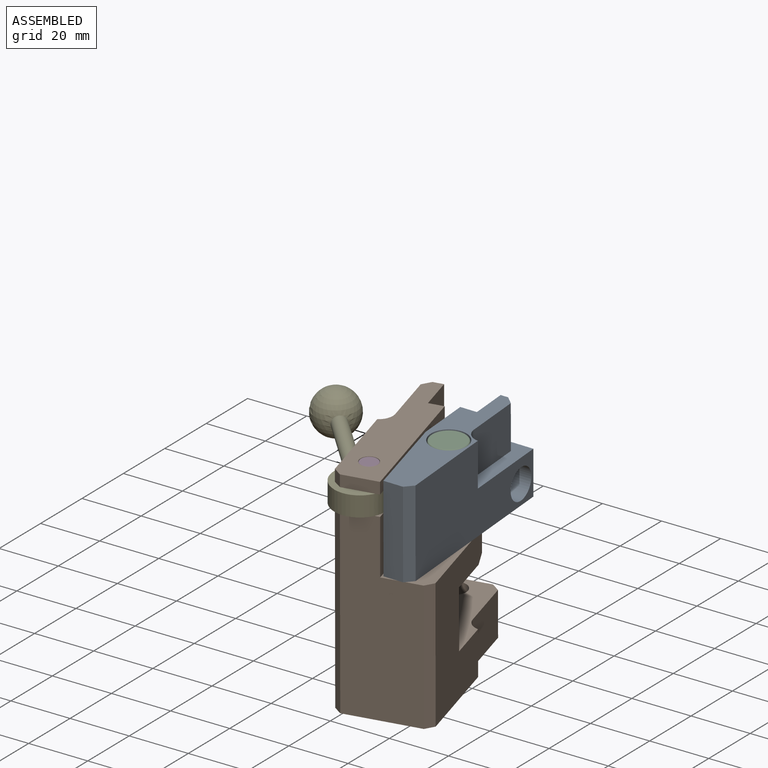
[diagram: assembled view]
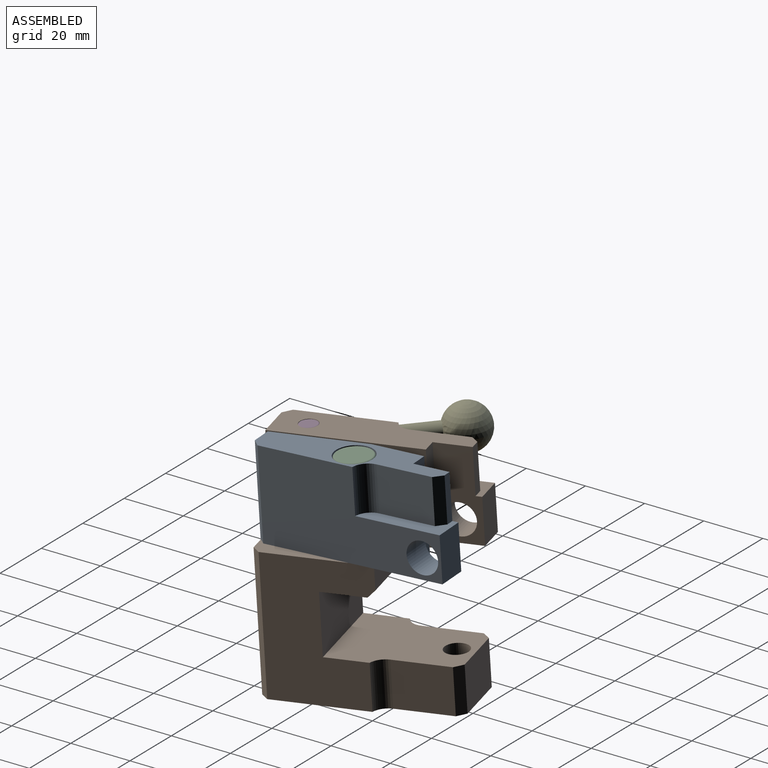
[diagram: assembled view, second angle]
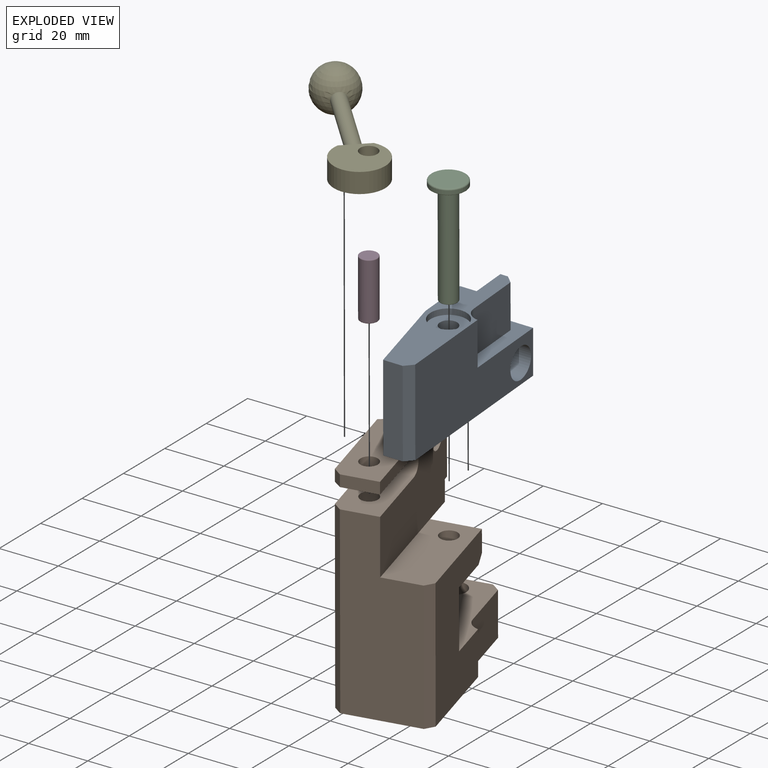
[diagram: exploded view]
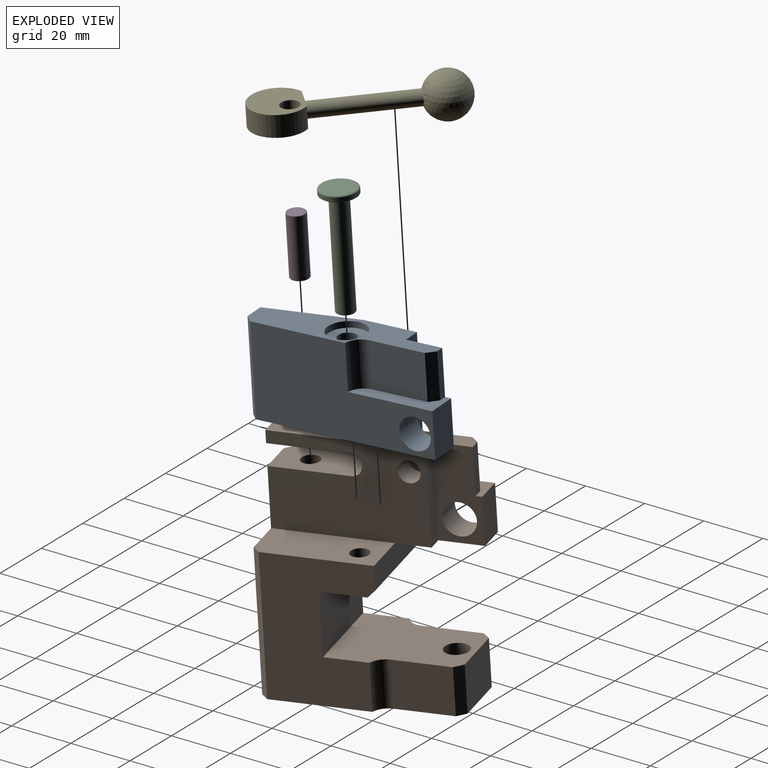
[diagram: exploded view, second angle]
ASSEMBLY  parts=5 mates=5
PART A: 19 faces, bbox 15x62x30 mm
  f0: cylinder r=3mm len=28mm, axis (0,0,1), area 527.8mm2, adj f8,f17
  f1: plane 30x6.5mm, normal (0,-1,0), area 195mm2, adj f2,f8,f12,f16
  f2: plane 30.5x30mm, normal (0.98,-0.19,0), area 932.5mm2, adj f1,f3,f8,f12
  f3: plane 30x17.5mm, normal (1,0,0), area 525mm2, adj f2,f4,f8,f12
  f4: plane 30x5.5mm, normal (0,1,0), area 165mm2, adj f3,f5,f8,f12
  f5: plane 30x14mm, normal (1,0,0), area 303.4mm2, adj f4,f6,f8,f9,f11,f12,f15
  f6: plane 15x9.5mm, normal (0,1,0), area 142.5mm2, adj f5,f7,f8,f9
  f7: plane 59.5x30mm, normal (-1,0,0), area 1278.4mm2, adj f6,f8,f9,f12,f13,f15,f16
  f8: plane 62x15mm, normal (0,0,1), area 730.1mm2, adj f0,f1,f2,f3,f4,f5,f6,f7
  f9: plane 28x9.5mm, normal (0,0,-1), area 133.8mm2, adj f5,f6,f7,f10,f11,f13,f14
  f10: plane 18.53x15mm, normal (-1,0,0), area 277.9mm2, adj f9,f12,f13,f14
  f11: plane 15x2.5mm, normal (0,1,0), area 37.5mm2, adj f5,f9,f12,f14
  f12: plane 60x15mm, normal (0,0,-1), area 501.9mm2, adj f1,f2,f3,f4,f5,f7,f10,f11
  f13: cylinder r=5mm len=15mm, axis (0,0,1), area 110.2mm2, adj f7,f9,f10,f12
  f14: plane 15x2.5mm, normal (-0.71,0.71,0), area 53mm2, adj f9,f10,f11,f12
  f15: cylinder r=5.25mm len=10.5mm, axis (-1,0,0), area 313.4mm2, adj f5,f7
  f16: plane 30x2.5mm, normal (-0.71,-0.71,0), area 106.1mm2, adj f1,f7,f8,f12
  f17: plane 12.5x12.5mm, normal (0,0,-1), area 94.4mm2, adj f0,f18
  f18: cylinder r=6.25mm len=12.5mm, axis (0,0,-1), area 78.5mm2, adj f12,f17
PART B: 43 faces, bbox 30x62x75 mm
  f0: plane 37x15.5mm, normal (0,0,1), area 541.6mm2, adj f3,f5,f10,f18,f32,f39
  f1: plane 12x4mm, normal (0,-1,0), area 48mm2, adj f3,f20,f23,f33
  f2: plane 75x59.5mm, normal (-1,0,0), area 2266mm2, adj f4,f11,f12,f14,f17,f18,f19,f20
  f3: plane 48x30mm, normal (1,0,0), area 1207.3mm2, adj f0,f1,f10,f20,f21,f22,f23,f24
  f4: plane 30x20mm, normal (0,1,0), area 600mm2, adj f2,f5,f11,f17
  f5: plane 45x34.5mm, normal (1,0,0), area 1164.4mm2, adj f0,f4,f11,f12,f13,f17,f18,f19
  f6: plane 18.73x15mm, normal (1,0,0), area 281mm2, adj f11,f12,f13,f16
  f7: plane 18x15mm, normal (0,1,0), area 270mm2, adj f11,f12,f15,f16
  f8: plane 18.73x15mm, normal (-1,0,0), area 281mm2, adj f11,f12,f14,f15
  f9: cylinder r=3.95mm len=15mm, axis (0,0,-1), area 372.7mm2, adj f11,f12
  f10: plane 64x25mm, normal (0,-1,0), area 1353mm2, adj f0,f3,f12,f21,f32,f34
  f11: plane 40x30mm, normal (0,0,1), area 971.5mm2, adj f2,f4,f5,f6,f7,f8,f9,f13
  f12: plane 60x30mm, normal (0,0,-1), area 1565.3mm2, adj f2,f5,f6,f7,f8,f9,f10,f13
  f13: cylinder r=5mm len=15mm, axis (0,0,-1), area 95mm2, adj f5,f6,f11,f12
  f14: cylinder r=5mm len=15mm, axis (0,0,1), area 95mm2, adj f2,f8,f11,f12
  f15: plane 15x2.5mm, normal (-0.71,0.71,0), area 53mm2, adj f7,f8,f11,f12
  f16: plane 15x2.5mm, normal (0.71,0.71,0), area 53mm2, adj f6,f7,f11,f12
  f17: plane 30x14.5mm, normal (0,0,-1), area 406.3mm2, adj f2,f4,f5,f19,f39
  f18: plane 30x7.5mm, normal (0,1,0), area 225mm2, adj f0,f2,f5,f19,f24
  f19: plane 30x2.5mm, normal (0,0.71,-0.71), area 106.1mm2, adj f2,f5,f17,f18
  f20: plane 60x14.5mm, normal (0,0,1), area 688.4mm2, adj f1,f2,f3,f25,f26,f29,f30,f31
  f21: plane 25x14.5mm, normal (0,0,1), area 330.6mm2, adj f2,f3,f10,f22,f34,f41
  f22: cylinder r=3.5mm len=14.5mm, axis (1,0,0), area 159.4mm2, adj f2,f3,f21,f23
  f23: plane 25x14.5mm, normal (0,0,-1), area 330.6mm2, adj f1,f2,f3,f22,f33,f40
  f24: plane 25x14.5mm, normal (0,0,-1), area 292.5mm2, adj f2,f3,f18,f25,f26,f28
  f25: plane 30x5mm, normal (0,1,0), area 150mm2, adj f3,f20,f24,f26
  f26: plane 30x14mm, normal (1,0,0), area 303.4mm2, adj f20,f24,f25,f27,f28,f30,f36
  f27: plane 28x9.5mm, normal (0,0,1), area 108.7mm2, adj f2,f26,f28,f29,f30,f31,f35
  f28: plane 15x9.5mm, normal (0,1,0), area 142.5mm2, adj f2,f24,f26,f27
  f29: plane 18.73x15mm, normal (-1,0,0), area 281mm2, adj f20,f27,f31,f35
  f30: plane 15x3.5mm, normal (0,1,0), area 52.5mm2, adj f20,f26,f27,f35
  f31: cylinder r=5mm len=15mm, axis (0,0,1), area 95mm2, adj f2,f20,f27,f29
  f32: plane 45x2.5mm, normal (0.71,-0.71,0), area 159.1mm2, adj f0,f5,f10,f12
  f33: plane 4x2.5mm, normal (-0.71,-0.71,0), area 14.1mm2, adj f1,f2,f20,f23
  f34: plane 64x2.5mm, normal (-0.71,-0.71,0), area 226.3mm2, adj f2,f10,f12,f21
  f35: plane 15x2.5mm, normal (-0.71,0.71,0), area 53mm2, adj f20,f27,f29,f30
  f36: cylinder r=5.25mm len=10.5mm, axis (1,0,0), area 313.4mm2, adj f2,f26
  f37: cylinder r=3.5mm len=8mm, axis (1,0,0), area 175.9mm2, adj f3,f38
  f38: plane 7x7mm, normal (1,0,0), area 38.5mm2, adj f37
  f39: cylinder r=3.02mm len=10mm, axis (0,0,1), area 190.1mm2, adj f0,f17
  f40: cylinder r=3.02mm len=6.05mm, axis (0,0,1), area 76mm2, adj f20,f23
  f41: cylinder r=3.02mm len=9mm, axis (0,0,1), area 171.1mm2, adj f21,f42
  f42: plane 6.05x6.05mm, normal (0,0,1), area 28.7mm2, adj f41
PART C: 8 faces, bbox 13x13x38 mm
  f0: cylinder r=3mm len=35.75mm, axis (0,0,-1), area 673.9mm2, adj f4,f7
  f1: plane 5.5x5.5mm, normal (0,0,-1), area 23.8mm2, adj f7
  f2: cylinder r=6mm len=12mm, axis (0,0,-1), area 47.1mm2, adj f5,f6
  f3: plane 11x11mm, normal (0,0,1), area 95mm2, adj f5
  f4: plane 11.5x11.5mm, normal (0,0,-1), area 75.6mm2, adj f0,f6
  f5: torus R=5.5mm, axis (0,0,1), area 28.7mm2, adj f2,f3
  f6: torus R=5.75mm, axis (0,0,1), area 14.6mm2, adj f2,f4
  f7: torus R=2.75mm, axis (0,0,1), area 7.2mm2, adj f0,f1
PART D: 5 faces, bbox 6.5x6.5x20 mm
  f0: cylinder r=3mm len=19.5mm, axis (0,0,-1), area 367.6mm2, adj f3,f4
  f1: plane 5.5x5.5mm, normal (0,0,1), area 23.8mm2, adj f4
  f2: plane 5.5x5.5mm, normal (0,0,-1), area 23.8mm2, adj f3
  f3: torus R=2.75mm, axis (0,0,1), area 7.2mm2, adj f0,f2
  f4: torus R=2.75mm, axis (0,0,1), area 7.2mm2, adj f0,f1
PART E: 9 faces, bbox 18x63.9x15 mm
  f0: cylinder r=2.5mm len=32.93mm, axis (0,1,0), area 517.2mm2, adj f2,f5
  f1: cylinder r=9mm len=18mm, axis (0,0,-1), area 318.5mm2, adj f2,f3,f4
  f2: plane 10.1x6.95mm, normal (0,-1,0), area 50.6mm2, adj f0,f1,f3,f4
  f3: plane 18x16.45mm, normal (0,0,1), area 215.6mm2, adj f1,f2,f6
  f4: plane 18x16.45mm, normal (0,0,-1), area 215.6mm2, adj f1,f2,f6
  f5: sphere r=7.5mm, area 686.6mm2, adj f0
  f6: cylinder r=3mm len=6.95mm, axis (0,0,1), area 131mm2, adj f3,f4
  f7: sphere r=2.5mm, area 39.3mm2, adj f8
  f8: plane 5x5mm, normal (0,-1,0), area 19.6mm2, adj f7
PLACE A rot(axis=(0.02,-1,-0.02),178.4deg) t=(-34.97,-56.94,74.38)mm
PLACE B rot(axis=(0.2,0.1,0.97),13.4deg) t=(-60.22,-58.91,14.95)mm fixed
PLACE C rot(axis=(0.2,0.1,0.97),13.4deg) t=(-43.52,-26.18,52.97)mm
PLACE D rot(axis=(0.2,0.1,0.97),13.4deg) t=(-53.83,-49.96,70.24)mm
PLACE E rot(axis=(-0.01,0.03,-1),136.9deg) t=(-53.71,-54.59,79.04)mm
MATE revolute A.f0 <-> C.f0  axis (-0.03,0.04,-1) through (-42.47,-27.77,88.92)mm
MATE fastened D.f0 <-> B.f40  axis (0.03,-0.04,1) through (-53.25,-50.84,90.21)mm
MATE slider C.f0 <-> B.f39  axis (-0.03,0.04,-1) through (-42.99,-26.98,71.07)mm
MATE planar A.f8 <-> B.f0  axis (-0.03,0.04,-1) through (-47.85,-41.41,60.43)mm
MATE revolute E.f6 <-> B.f40  axis (-0.03,0.04,-1) through (-53.57,-50.36,79.23)mm
